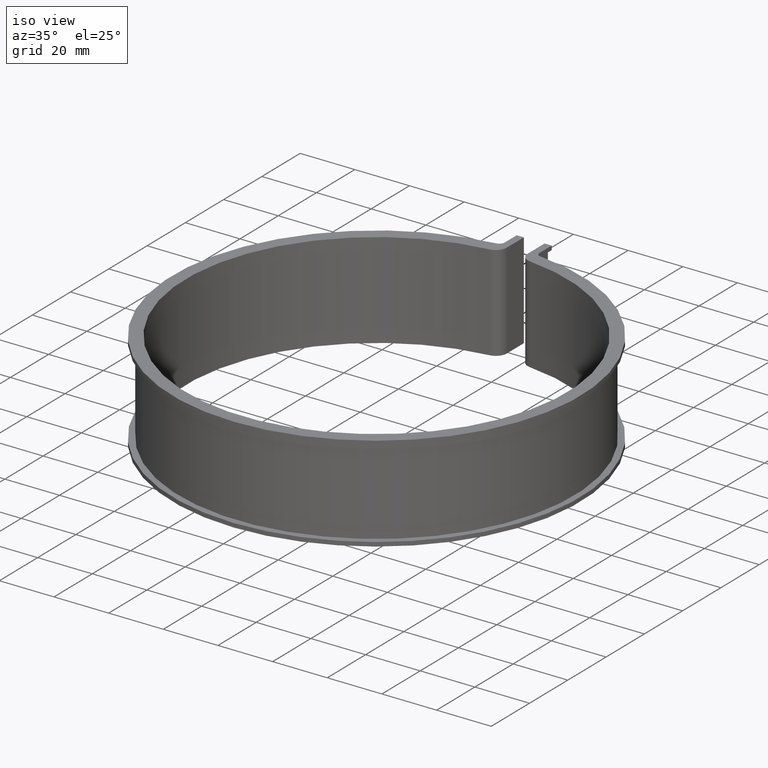
[diagram: clean part render]
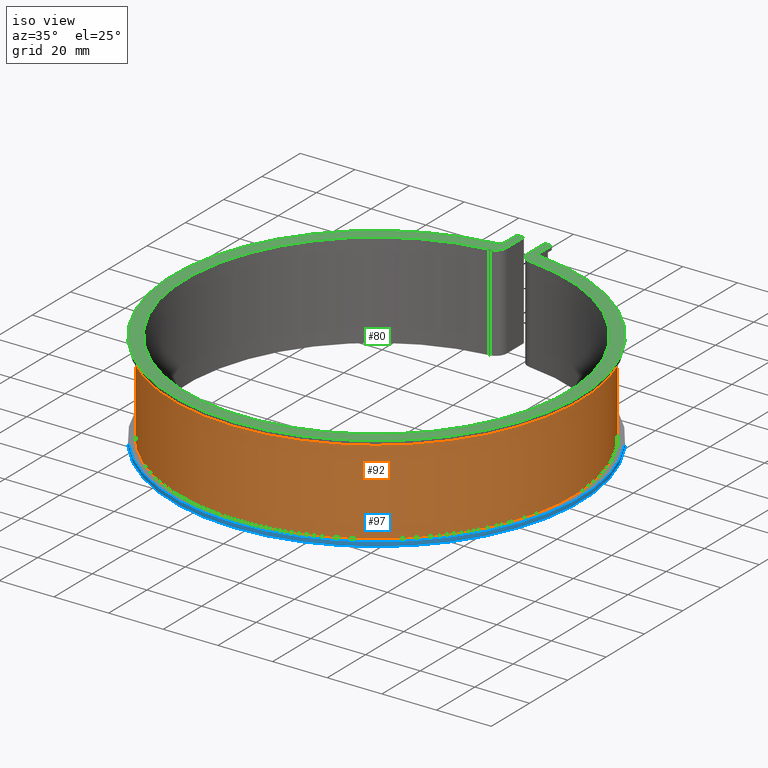
[diagram: same view with three faces highlighted in distinct colors, each labeled with its STEP entity id]
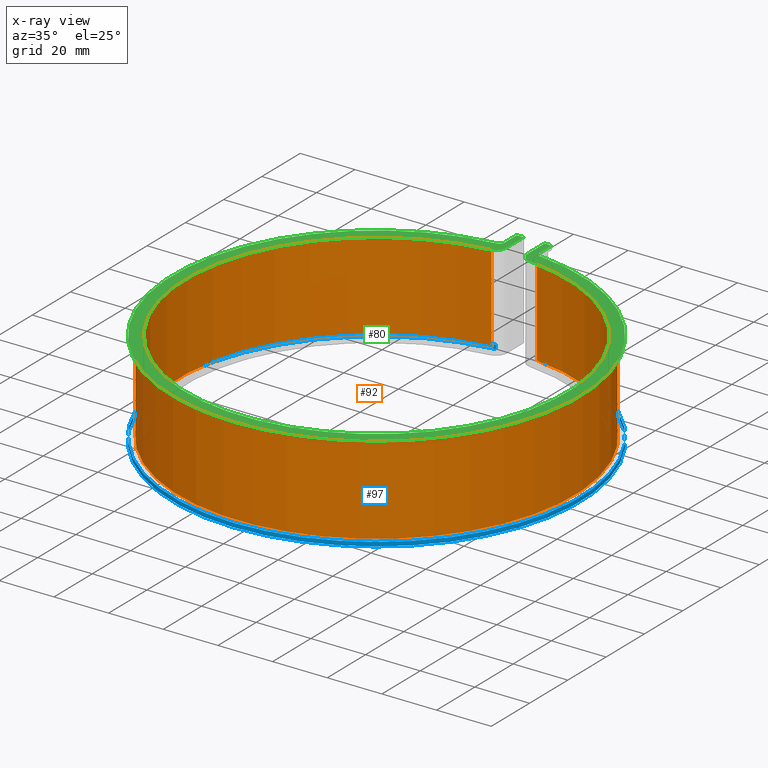
[diagram: x-ray of the same camera — body ghosted, the three highlighted faces saturated]
A machine part, iso view with three faces highlighted in distinct colors.
The next image is the same camera in x-ray (body ghosted, the three faces saturated) — at least one of them is partly hidden behind the body in this view.
Their STEP definitions:

[orange] entity #92 — the highlighted cylindrical surface (partial cylindrical patch) has radius 72.4 mm, axis along (0, 0, -1).
#92 = ADVANCED_FACE( '', ( #136 ), #137, .T. );
#136 = FACE_OUTER_BOUND( '', #188, .T. );
#137 = CYLINDRICAL_SURFACE( '', #189, 72.4000000000000 );
#188 = EDGE_LOOP( '', ( #353, #354, #355, #356 ) );
#189 = AXIS2_PLACEMENT_3D( '', #357, #358, #359 );
#353 = ORIENTED_EDGE( '', *, *, #471, .F. );
#354 = ORIENTED_EDGE( '', *, *, #487, .F. );
#355 = ORIENTED_EDGE( '', *, *, #434, .T. );
#356 = ORIENTED_EDGE( '', *, *, #488, .T. );
#357 = CARTESIAN_POINT( '', ( -8.67361737988404E-016, 5.55111512312578E-014, -32.0000000000000 ) );
#358 = DIRECTION( '', ( 0.000000000000000, 0.000000000000000, -1.00000000000000 ) );
#359 = DIRECTION( '', ( -0.105548037889040, -0.994414205297659, 0.000000000000000 ) );
#434 = EDGE_CURVE( '', #513, #511, #514, .T. );
#471 = EDGE_CURVE( '', #577, #579, #580, .T. );
#487 = EDGE_CURVE( '', #513, #577, #603, .T. );
#488 = EDGE_CURVE( '', #511, #579, #604, .T. );
#511 = VERTEX_POINT( '', #634 );
#513 = VERTEX_POINT( '', #636 );
#514 = CIRCLE( '', #637, 72.4000000000000 );
#577 = VERTEX_POINT( '', #724 );
#579 = VERTEX_POINT( '', #726 );
#580 = CIRCLE( '', #727, 72.4000000000000 );
#603 = LINE( '', #761, #762 );
#604 = LINE( '', #763, #764 );
#634 = CARTESIAN_POINT( '', ( 8.27700394218129, 71.9253168622921, -32.0000000000000 ) );
#636 = CARTESIAN_POINT( '', ( -8.27700394218134, 71.9253168622921, -32.0000000000000 ) );
#637 = AXIS2_PLACEMENT_3D( '', #800, #801, #802 );
#724 = CARTESIAN_POINT( '', ( -8.27700394218134, 71.9253168622921, 0.000000000000000 ) );
#726 = CARTESIAN_POINT( '', ( 8.27700394218129, 71.9253168622921, 0.000000000000000 ) );
#727 = AXIS2_PLACEMENT_3D( '', #863, #864, #865 );
#761 = CARTESIAN_POINT( '', ( -8.27700394218134, 71.9253168622921, -32.0000000000000 ) );
#762 = VECTOR( '', #889, 1000.00000000000 );
#763 = CARTESIAN_POINT( '', ( 8.27700394218129, 71.9253168622921, -32.0000000000000 ) );
#764 = VECTOR( '', #890, 1000.00000000000 );
#800 = CARTESIAN_POINT( '', ( -8.67361737988404E-016, 5.55111512312578E-014, -32.0000000000000 ) );
#801 = DIRECTION( '', ( 0.000000000000000, 0.000000000000000, 1.00000000000000 ) );
#802 = DIRECTION( '', ( 1.00000000000000, -4.16333634234434E-017, 0.000000000000000 ) );
#863 = CARTESIAN_POINT( '', ( -8.67361737988404E-016, 5.55111512312578E-014, 0.000000000000000 ) );
#864 = DIRECTION( '', ( 0.000000000000000, 0.000000000000000, 1.00000000000000 ) );
#865 = DIRECTION( '', ( 1.00000000000000, -4.16333634234434E-017, 0.000000000000000 ) );
#889 = DIRECTION( '', ( 0.000000000000000, 0.000000000000000, 1.00000000000000 ) );
#890 = DIRECTION( '', ( 0.000000000000000, 0.000000000000000, 1.00000000000000 ) );

[blue] entity #97 — the highlighted cylindrical surface (partial cylindrical patch) has radius 74.6 mm, axis along (0, 0, -1).
#97 = ADVANCED_FACE( '', ( #146 ), #147, .T. );
#146 = FACE_OUTER_BOUND( '', #198, .T. );
#147 = CYLINDRICAL_SURFACE( '', #199, 74.6000000000000 );
#198 = EDGE_LOOP( '', ( #392, #393, #394, #395 ) );
#199 = AXIS2_PLACEMENT_3D( '', #396, #397, #398 );
#392 = ORIENTED_EDGE( '', *, *, #440, .F. );
#393 = ORIENTED_EDGE( '', *, *, #494, .F. );
#394 = ORIENTED_EDGE( '', *, *, #495, .T. );
#395 = ORIENTED_EDGE( '', *, *, #496, .T. );
#396 = CARTESIAN_POINT( '', ( -1.73472347597681E-015, 2.77555756156289E-014, -33.5000000000000 ) );
#397 = DIRECTION( '', ( 0.000000000000000, 0.000000000000000, -1.00000000000000 ) );
#398 = DIRECTION( '', ( 0.000000000000000, 1.00000000000000, 0.000000000000000 ) );
#440 = EDGE_CURVE( '', #523, #525, #526, .T. );
#494 = EDGE_CURVE( '', #610, #523, #612, .T. );
#495 = EDGE_CURVE( '', #610, #613, #614, .T. );
#496 = EDGE_CURVE( '', #613, #525, #615, .T. );
#523 = VERTEX_POINT( '', #649 );
#525 = VERTEX_POINT( '', #651 );
#526 = CIRCLE( '', #652, 74.6000000000000 );
#610 = VERTEX_POINT( '', #774 );
#612 = LINE( '', #776, #777 );
#613 = VERTEX_POINT( '', #778 );
#614 = CIRCLE( '', #779, 74.6000000000000 );
#615 = LINE( '', #780, #781 );
#649 = CARTESIAN_POINT( '', ( -8.18067885117495, 74.1500943595754, -32.0000000000000 ) );
#651 = CARTESIAN_POINT( '', ( 8.18067885117489, 74.1500943595754, -32.0000000000000 ) );
#652 = AXIS2_PLACEMENT_3D( '', #812, #813, #814 );
#774 = CARTESIAN_POINT( '', ( -8.18067885117495, 74.1500943595754, -33.5000000000000 ) );
#776 = CARTESIAN_POINT( '', ( -8.18067885117495, 74.1500943595754, -33.5000000000000 ) );
#777 = VECTOR( '', #898, 1000.00000000000 );
#778 = CARTESIAN_POINT( '', ( 8.18067885117489, 74.1500943595754, -33.5000000000000 ) );
#779 = AXIS2_PLACEMENT_3D( '', #899, #900, #901 );
#780 = CARTESIAN_POINT( '', ( 8.18067885117489, 74.1500943595754, -33.5000000000000 ) );
#781 = VECTOR( '', #902, 1000.00000000000 );
#812 = CARTESIAN_POINT( '', ( -1.73472347597681E-015, 2.77555756156289E-014, -32.0000000000000 ) );
#813 = DIRECTION( '', ( 0.000000000000000, 0.000000000000000, 1.00000000000000 ) );
#814 = DIRECTION( '', ( 1.00000000000000, 0.000000000000000, 0.000000000000000 ) );
#898 = DIRECTION( '', ( 0.000000000000000, 0.000000000000000, 1.00000000000000 ) );
#899 = CARTESIAN_POINT( '', ( -1.73472347597681E-015, 2.77555756156289E-014, -33.5000000000000 ) );
#900 = DIRECTION( '', ( 0.000000000000000, 0.000000000000000, 1.00000000000000 ) );
#901 = DIRECTION( '', ( 1.00000000000000, 0.000000000000000, 0.000000000000000 ) );
#902 = DIRECTION( '', ( 0.000000000000000, 0.000000000000000, 1.00000000000000 ) );

[green] entity #80 — the highlighted planar face has unit normal (0, 0, -1).
#80 = ADVANCED_FACE( '', ( #112 ), #113, .F. );
#112 = FACE_OUTER_BOUND( '', #164, .T. );
#113 = PLANE( '', #165 );
#164 = EDGE_LOOP( '', ( #253, #254, #255, #256, #257, #258, #259, #260, #261, #262, #263, #264 ) );
#165 = AXIS2_PLACEMENT_3D( '', #265, #266, #267 );
#253 = ORIENTED_EDGE( '', *, *, #456, .T. );
#254 = ORIENTED_EDGE( '', *, *, #447, .T. );
#255 = ORIENTED_EDGE( '', *, *, #457, .T. );
#256 = ORIENTED_EDGE( '', *, *, #458, .T. );
#257 = ORIENTED_EDGE( '', *, *, #459, .T. );
#258 = ORIENTED_EDGE( '', *, *, #460, .T. );
#259 = ORIENTED_EDGE( '', *, *, #461, .T. );
#260 = ORIENTED_EDGE( '', *, *, #462, .T. );
#261 = ORIENTED_EDGE( '', *, *, #463, .T. );
#262 = ORIENTED_EDGE( '', *, *, #429, .T. );
#263 = ORIENTED_EDGE( '', *, *, #454, .T. );
#264 = ORIENTED_EDGE( '', *, *, #464, .T. );
#265 = CARTESIAN_POINT( '', ( -8.40000000000000, 76.1380325461592, 1.50000000000000 ) );
#266 = DIRECTION( '', ( 0.000000000000000, 0.000000000000000, -1.00000000000000 ) );
#267 = DIRECTION( '', ( 0.000000000000000, -1.00000000000000, 0.000000000000000 ) );
#429 = EDGE_CURVE( '', #503, #501, #504, .T. );
#447 = EDGE_CURVE( '', #538, #536, #539, .T. );
#454 = EDGE_CURVE( '', #501, #549, #551, .T. );
#456 = EDGE_CURVE( '', #553, #538, #554, .T. );
#457 = EDGE_CURVE( '', #536, #555, #556, .T. );
#458 = EDGE_CURVE( '', #555, #557, #558, .T. );
#459 = EDGE_CURVE( '', #557, #559, #560, .T. );
#460 = EDGE_CURVE( '', #559, #561, #562, .T. );
#461 = EDGE_CURVE( '', #561, #563, #564, .T. );
#462 = EDGE_CURVE( '', #563, #565, #566, .T. );
#463 = EDGE_CURVE( '', #565, #503, #567, .T. );
#464 = EDGE_CURVE( '', #549, #553, #568, .T. );
#501 = VERTEX_POINT( '', #621 );
#503 = VERTEX_POINT( '', #624 );
#504 = CIRCLE( '', #625, 4.00000000000000 );
#536 = VERTEX_POINT( '', #666 );
#538 = VERTEX_POINT( '', #669 );
#539 = LINE( '', #670, #671 );
#549 = VERTEX_POINT( '', #686 );
#551 = CIRCLE( '', #689, 69.9000000000000 );
#553 = VERTEX_POINT( '', #691 );
#554 = LINE( '', #692, #693 );
#555 = VERTEX_POINT( '', #694 );
#556 = LINE( '', #695, #696 );
#557 = VERTEX_POINT( '', #697 );
#558 = CIRCLE( '', #698, 2.00000000000000 );
#559 = VERTEX_POINT( '', #699 );
#560 = CIRCLE( '', #700, 74.6000000000000 );
#561 = VERTEX_POINT( '', #701 );
#562 = CIRCLE( '', #702, 2.00000000000000 );
#563 = VERTEX_POINT( '', #703 );
#564 = LINE( '', #704, #705 );
#565 = VERTEX_POINT( '', #706 );
#566 = LINE( '', #707, #708 );
#567 = LINE( '', #709, #710 );
#568 = CIRCLE( '', #711, 4.00000000000000 );
#621 = CARTESIAN_POINT( '', ( 7.37780784844383, 69.5095529503064, 1.50000000000000 ) );
#624 = CARTESIAN_POINT( '', ( 3.80000000000000, 73.4872097714970, 1.50000000000000 ) );
#625 = AXIS2_PLACEMENT_3D( '', #789, #790, #791 );
#666 = CARTESIAN_POINT( '', ( -6.40000000000001, 82.4000000000000, 1.50000000000000 ) );
#669 = CARTESIAN_POINT( '', ( -3.80000000000000, 82.4000000000000, 1.50000000000000 ) );
#670 = CARTESIAN_POINT( '', ( -3.80000000000000, 82.4000000000000, 1.50000000000000 ) );
#671 = VECTOR( '', #823, 1000.00000000000 );
#686 = CARTESIAN_POINT( '', ( -7.37780784844385, 69.5095529503063, 1.50000000000000 ) );
#689 = AXIS2_PLACEMENT_3D( '', #830, #831, #832 );
#691 = CARTESIAN_POINT( '', ( -3.80000000000000, 73.4872097714970, 1.50000000000000 ) );
#692 = CARTESIAN_POINT( '', ( -3.80000000000000, 73.4872097714970, 1.50000000000000 ) );
#693 = VECTOR( '', #836, 1000.00000000000 );
#694 = CARTESIAN_POINT( '', ( -6.40000000000000, 76.1380325461592, 1.50000000000000 ) );
#695 = CARTESIAN_POINT( '', ( -6.39999999999999, 82.4000000000000, 1.50000000000000 ) );
#696 = VECTOR( '', #837, 1000.00000000000 );
#697 = CARTESIAN_POINT( '', ( -8.18067885117495, 74.1500943595754, 1.50000000000000 ) );
#698 = AXIS2_PLACEMENT_3D( '', #838, #839, #840 );
#699 = CARTESIAN_POINT( '', ( 8.18067885117489, 74.1500943595754, 1.50000000000000 ) );
#700 = AXIS2_PLACEMENT_3D( '', #841, #842, #843 );
#701 = CARTESIAN_POINT( '', ( 6.39999999999999, 76.1380325461592, 1.50000000000000 ) );
#702 = AXIS2_PLACEMENT_3D( '', #844, #845, #846 );
#703 = CARTESIAN_POINT( '', ( 6.39999999999999, 82.4000000000000, 1.50000000000000 ) );
#704 = CARTESIAN_POINT( '', ( 6.39999999999999, 76.1380325461592, 1.50000000000000 ) );
#705 = VECTOR( '', #847, 1000.00000000000 );
#706 = CARTESIAN_POINT( '', ( 3.80000000000001, 82.4000000000000, 1.50000000000000 ) );
#707 = CARTESIAN_POINT( '', ( 6.39999999999999, 82.4000000000000, 1.50000000000000 ) );
#708 = VECTOR( '', #848, 1000.00000000000 );
#709 = CARTESIAN_POINT( '', ( 3.80000000000000, 82.4000000000000, 1.50000000000000 ) );
#710 = VECTOR( '', #849, 1000.00000000000 );
#711 = AXIS2_PLACEMENT_3D( '', #850, #851, #852 );
#789 = CARTESIAN_POINT( '', ( 7.80000000000000, 73.4872097714970, 1.50000000000000 ) );
#790 = DIRECTION( '', ( 0.000000000000000, 0.000000000000000, 1.00000000000000 ) );
#791 = DIRECTION( '', ( -1.00000000000000, 0.000000000000000, 0.000000000000000 ) );
#823 = DIRECTION( '', ( -1.00000000000000, 0.000000000000000, 0.000000000000000 ) );
#830 = CARTESIAN_POINT( '', ( 0.000000000000000, 0.000000000000000, 1.50000000000000 ) );
#831 = DIRECTION( '', ( 0.000000000000000, 0.000000000000000, -1.00000000000000 ) );
#832 = DIRECTION( '', ( 1.00000000000000, 0.000000000000000, 0.000000000000000 ) );
#836 = DIRECTION( '', ( 6.00481203222741E-017, 1.00000000000000, 0.000000000000000 ) );
#837 = DIRECTION( '', ( -6.00481203222741E-017, -1.00000000000000, 0.000000000000000 ) );
#838 = CARTESIAN_POINT( '', ( -8.40000000000000, 76.1380325461592, 1.50000000000000 ) );
#839 = DIRECTION( '', ( 0.000000000000000, 0.000000000000000, -1.00000000000000 ) );
#840 = DIRECTION( '', ( 1.00000000000000, 0.000000000000000, 0.000000000000000 ) );
#841 = CARTESIAN_POINT( '', ( -1.73472347597681E-015, 2.77555756156289E-014, 1.50000000000000 ) );
#842 = DIRECTION( '', ( 0.000000000000000, 0.000000000000000, 1.00000000000000 ) );
#843 = DIRECTION( '', ( 1.00000000000000, 0.000000000000000, 0.000000000000000 ) );
#844 = CARTESIAN_POINT( '', ( 8.39999999999999, 76.1380325461592, 1.50000000000000 ) );
#845 = DIRECTION( '', ( 0.000000000000000, 0.000000000000000, -1.00000000000000 ) );
#846 = DIRECTION( '', ( -1.00000000000000, 0.000000000000000, 0.000000000000000 ) );
#847 = DIRECTION( '', ( 6.00481203222741E-017, 1.00000000000000, 0.000000000000000 ) );
#848 = DIRECTION( '', ( -1.00000000000000, 0.000000000000000, 0.000000000000000 ) );
#849 = DIRECTION( '', ( -6.00481203222741E-017, -1.00000000000000, 0.000000000000000 ) );
#850 = CARTESIAN_POINT( '', ( -7.80000000000000, 73.4872097714970, 1.50000000000000 ) );
#851 = DIRECTION( '', ( 0.000000000000000, 0.000000000000000, 1.00000000000000 ) );
#852 = DIRECTION( '', ( 1.00000000000000, 0.000000000000000, 0.000000000000000 ) );